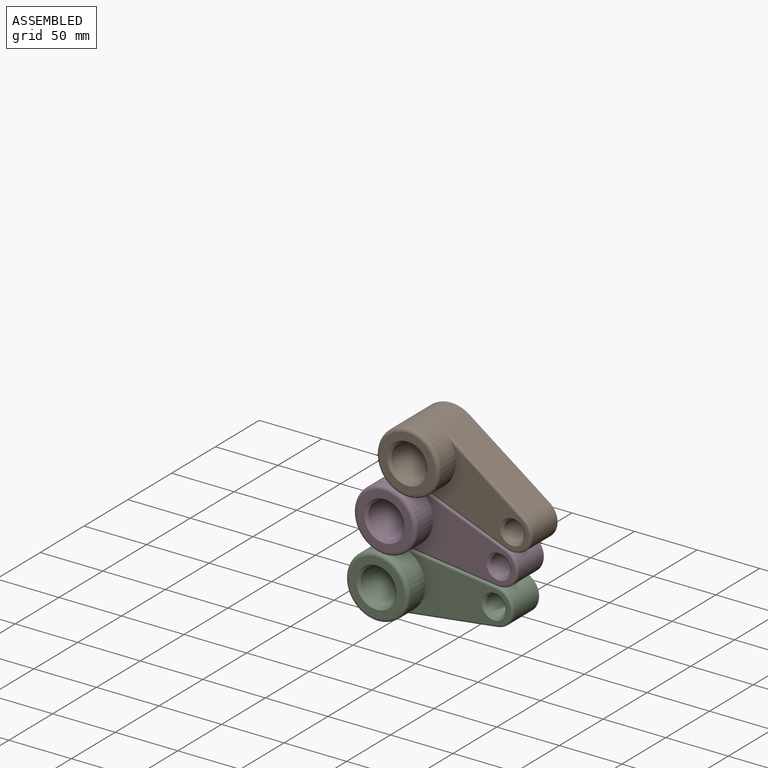
[diagram: assembled view]
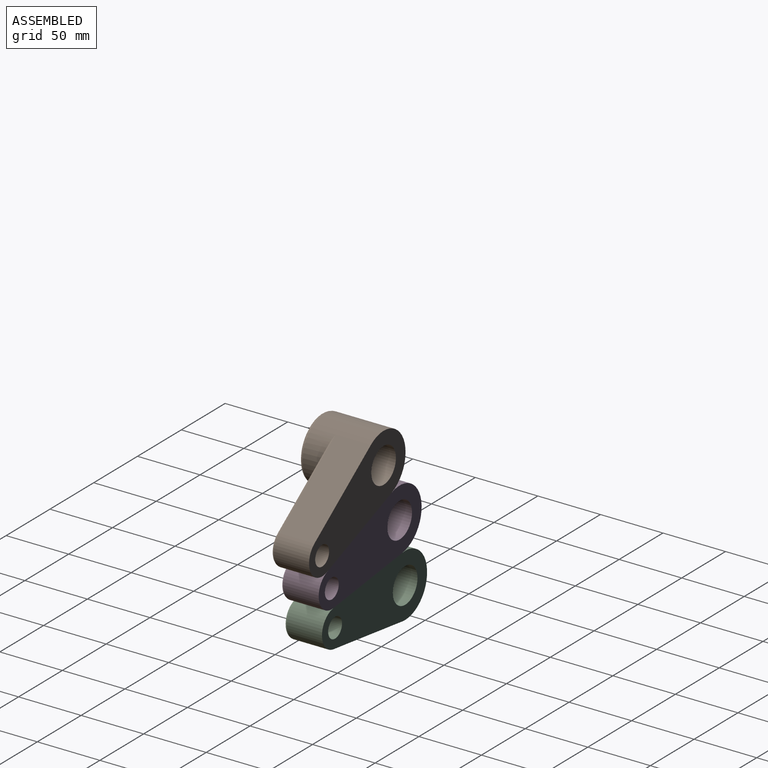
[diagram: assembled view, second angle]
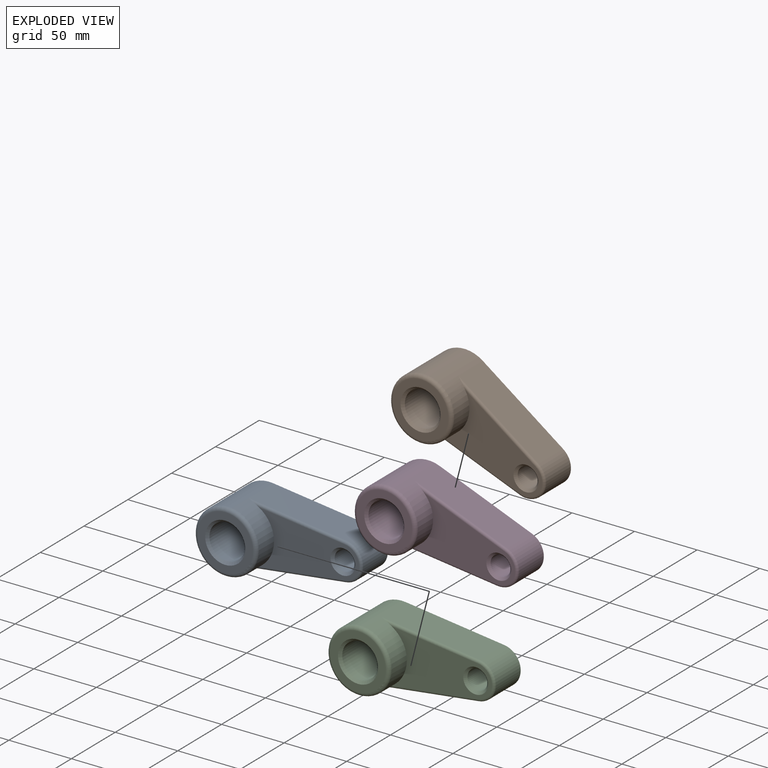
[diagram: exploded view]
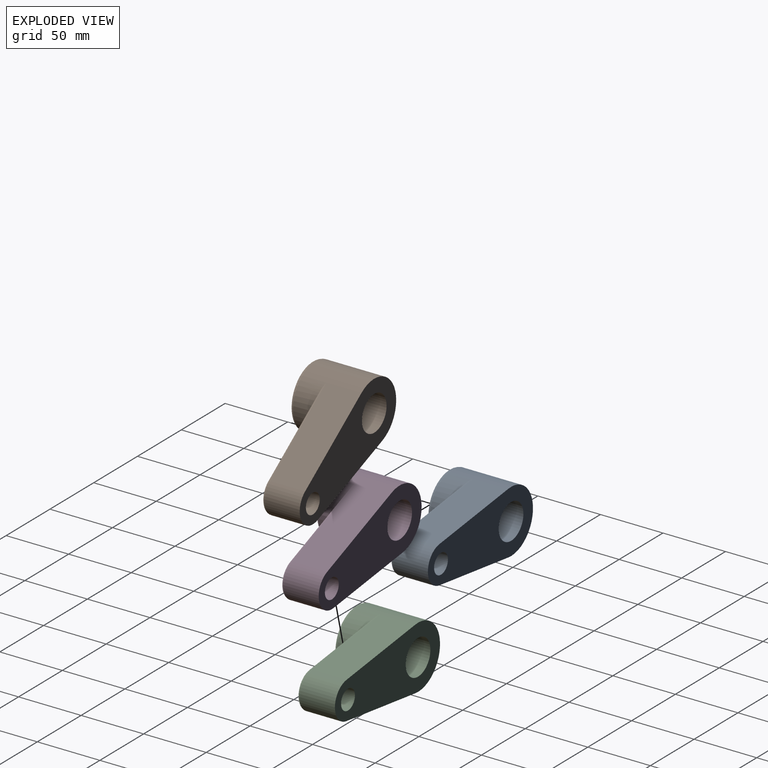
[diagram: exploded view, second angle]
ASSEMBLY  parts=4 mates=2
PART A: 15 faces, bbox 123.3x50x54.1 mm
  f0: plane 80.4x43.19mm, normal (0,-1,0), area 1915.5mm2, adj f1,f10,f12,f13,f14
  f1: cylinder r=25mm len=50mm, axis (0,1,0), area 5230.2mm2, adj f0,f2,f4,f7,f9,f12,f14
  f2: plane 78.75x28mm, normal (0.12,0,-0.99), area 2222.4mm2, adj f1,f3,f7,f14
  f3: cylinder r=15mm len=29.76mm, axis (0,1,0), area 1214.2mm2, adj f2,f4,f7,f13
  f4: plane 78.75x28mm, normal (0.12,0,0.99), area 2222.4mm2, adj f1,f3,f7,f12
  f5: cylinder r=14.03mm len=48mm, axis (0,1,0), area 4232.2mm2, adj f7,f11
  f6: cylinder r=7.92mm len=28mm, axis (0,1,0), area 1393.3mm2, adj f7,f10
  f7: plane 120x50mm, normal (0,1,0), area 3744.5mm2, adj f1,f2,f3,f4,f5,f6
  f8: plane 44x44mm, normal (0,-1,0), area 713mm2, adj f9,f11
  f9: torus R=22mm, axis (0,-1,0), area 707.9mm2, adj f1,f8
  f10: cone r=7.92mm half-angle=45deg, axis (0,-1,0), area 158.5mm2, adj f0,f6
  f11: cone r=14.03mm half-angle=45deg, axis (0,-1,0), area 267.2mm2, adj f5,f8
  f12: cylinder r=2mm len=79mm, axis (0.99,0,-0.12), area 233mm2, adj f0,f1,f4,f13
  f13: torus R=13mm, axis (0,-1,0), area 129.6mm2, adj f0,f3,f12,f14
  f14: cylinder r=2mm len=79mm, axis (-0.99,0,-0.12), area 233mm2, adj f0,f1,f2,f13
PART B: same geometry as A
PART C: same geometry as A
PART D: same geometry as A
PLACE A t=(-25.85,20.98,21.78)mm
PLACE B rot(axis=(0,1,0),28.7deg) t=(-1.24,20.98,117.9)mm
PLACE C t=(-25.85,20.98,21.78)mm fixed
PLACE D rot(axis=(0,1,0),14.4deg) t=(-19.6,20.98,71.39)mm
MATE fastened D.f4 <-> B.f2  axis (0.37,0,0.93) through (26.5,6.98,80.07)mm
MATE fastened C.f4 <-> D.f2  axis (0.13,0,0.99) through (16.65,6.98,41.62)mm
